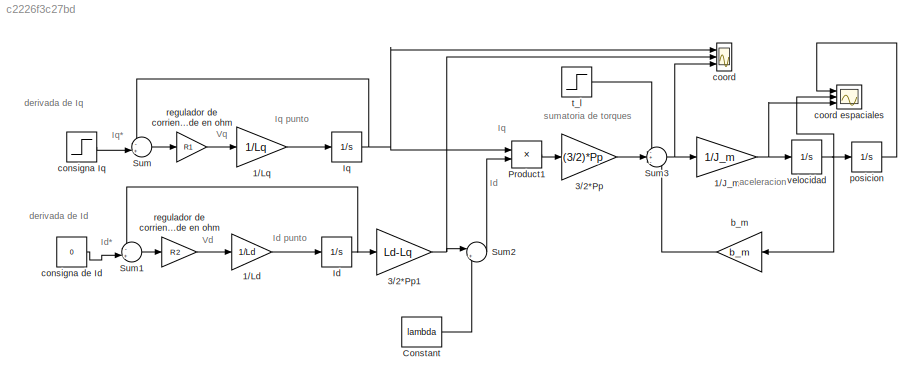
MODEL slx_c2226f3c27bd
KIND model
BLOCK [Gain] 1//J_m
  Gain = 1/J_m
  OutDataTypeStr = Inherit: Inherit via internal rule
  ParamDataTypeStr = Inherit: Inherit via internal rule
  SaturateOnIntegerOverflow = off
BLOCK [Gain] 1//Ld
  Gain = 1/Ld
  OutDataTypeStr = Inherit: Inherit via internal rule
  ParamDataTypeStr = Inherit: Inherit via internal rule
  SaturateOnIntegerOverflow = off
BLOCK [Gain] 1//Lq
  Gain = 1/Lq
  OutDataTypeStr = Inherit: Inherit via internal rule
  ParamDataTypeStr = Inherit: Inherit via internal rule
  SaturateOnIntegerOverflow = off
BLOCK [Gain] 3//2*Pp
  Gain = (3/2)*Pp
  OutDataTypeStr = Inherit: Inherit via internal rule
  ParamDataTypeStr = Inherit: Inherit via internal rule
  SaturateOnIntegerOverflow = off
BLOCK [Gain] 3//2*Pp1
  Gain = Ld-Lq
  OutDataTypeStr = Inherit: Inherit via internal rule
  ParamDataTypeStr = Inherit: Inherit via internal rule
  SaturateOnIntegerOverflow = off
BLOCK [Constant] Constant
  Value = lambda
BLOCK [Integrator] Id
  Ports = [1, 1]
BLOCK [Integrator] Iq
  Ports = [1, 1]
BLOCK [Product] Product1
  InputSameDT = off
  OutDataTypeStr = Inherit: Inherit via internal rule
  Ports = [2, 1]
  SaturateOnIntegerOverflow = off
BLOCK [Sum] Sum
  IconShape = round
  InputSameDT = off
  Inputs = -+|
  OutDataTypeStr = Inherit: Inherit via internal rule
  Ports = [2, 1]
  SaturateOnIntegerOverflow = off
BLOCK [Sum] Sum1
  IconShape = round
  InputSameDT = off
  Inputs = -+|
  OutDataTypeStr = Inherit: Inherit via internal rule
  Ports = [2, 1]
  SaturateOnIntegerOverflow = off
BLOCK [Sum] Sum2
  IconShape = round
  InputSameDT = off
  Inputs = |++
  OutDataTypeStr = Inherit: Inherit via internal rule
  Ports = [2, 1]
  SaturateOnIntegerOverflow = off
BLOCK [Sum] Sum3
  IconShape = round
  InputSameDT = off
  Inputs = -+-
  OutDataTypeStr = Inherit: Inherit via internal rule
  Ports = [3, 1]
  SaturateOnIntegerOverflow = off
BLOCK [Gain] b_m
  Gain = b_m
  OutDataTypeStr = Inherit: Inherit via internal rule
  ParamDataTypeStr = Inherit: Inherit via internal rule
  SaturateOnIntegerOverflow = off
BLOCK [Step] consigna Iq
  After = .16
  SampleTime = 0
  Time = 0.1
BLOCK [Constant] consigna de Id
  Value = 0
BLOCK [Scope] coord 
  DataFormat = StructureWithTime
  Floating = off
  LimitDataPoints = off
  MaxDataPoints = 8000
  NumInputPorts = 3
  Ports = [3]
  SampleTime = 0
  SaveName = ScopeData1
  ShowLegends = off
  TimeRange = 10
  YMax = 6~1~0.4
  YMin = 0~-1~0
  ZoomMode = xonly
BLOCK [Scope] coord espaciales
  DataFormat = StructureWithTime
  Floating = off
  LimitDataPoints = off
  MaxDataPoints = 8000
  NumInputPorts = 3
  Ports = [3]
  SampleTime = 0
  ShowLegends = off
  TimeRange = 12
  YMax = 3000~300~100000
  YMin = -1000~0~-50000
  ZoomMode = xonly
BLOCK [Integrator] posicion
  Ports = [1, 1]
BLOCK [Gain] regulador de corriente ganacia proporcional se mide en ohm
  Gain = R2
  OutDataTypeStr = Inherit: Inherit via internal rule
  ParamDataTypeStr = Inherit: Inherit via internal rule
  SaturateOnIntegerOverflow = off
BLOCK [Gain] regulador de corriente ganacia proporcional1 se mide en ohm
  Gain = R1
  OutDataTypeStr = Inherit: Inherit via internal rule
  ParamDataTypeStr = Inherit: Inherit via internal rule
  SaturateOnIntegerOverflow = off
BLOCK [Step] t_l
  After = T_l
  SampleTime = 0
  Time = .3
BLOCK [Integrator] velocidad
  ContinuousStateAttributes = 'velocidad'
  Ports = [1, 1]
ANNOTATION (root): Id
ANNOTATION (root): Id punto
ANNOTATION (root): Id*
ANNOTATION (root): Iq
ANNOTATION (root): Iq punto
ANNOTATION (root): Iq*
ANNOTATION (root): Vd
ANNOTATION (root): Vq
ANNOTATION (root): aceleracion
ANNOTATION (root): derivada de Id
ANNOTATION (root): derivada de Iq
ANNOTATION (root): sumatoria de torques
NET 1//J_m:1 -> coord espaciales:3, velocidad:1
LINE 1//Ld:1 -> Id:1
LINE 1//Lq:1 -> Iq:1
NET 3//2*Pp1:1 -> Sum2:1, coord :2
LINE 3//2*Pp:1 -> Sum3:2
LINE Constant:1 -> Sum2:2
NET Id:1 -> 3//2*Pp1:1, Sum1:1
NET Iq:1 -> Product1:1, Sum:1, coord :1
LINE Product1:1 -> 3//2*Pp:1
LINE Sum1:1 -> regulador de corriente ganacia proporcional se mide en ohm:1
LINE Sum2:1 -> Product1:2
NET Sum3:1 -> 1//J_m:1, coord :3
LINE Sum:1 -> regulador de corriente ganacia proporcional1 se mide en ohm:1
LINE b_m:1 -> Sum3:3
LINE consigna Iq:1 -> Sum:2
LINE consigna de Id:1 -> Sum1:2
LINE posicion:1 -> coord espaciales:1
LINE regulador de corriente ganacia proporcional se mide en ohm:1 -> 1//Ld:1
LINE regulador de corriente ganacia proporcional1 se mide en ohm:1 -> 1//Lq:1
LINE t_l:1 -> Sum3:1
NET velocidad:1 -> b_m:1, coord espaciales:2, posicion:1
note: NET lines group one-source signal fan-out (src -> all destinations, sorted); 1:1 wires keep LINE
